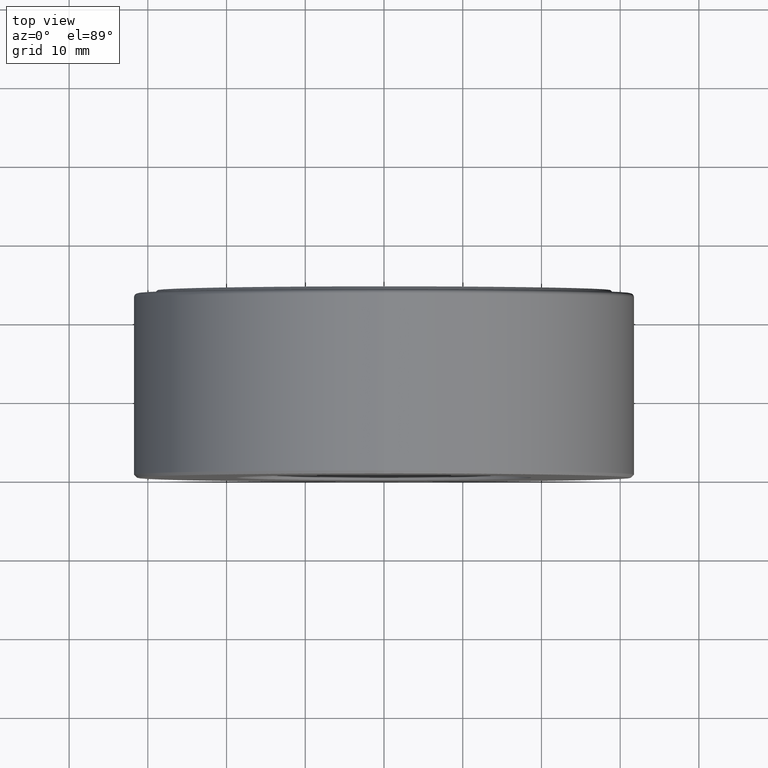
[diagram: clean part render]
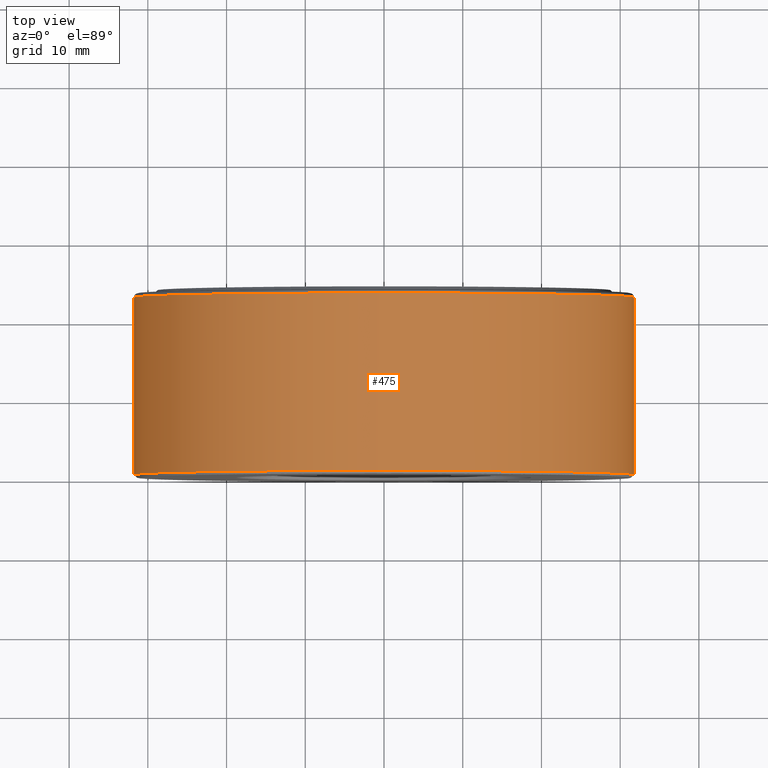
[diagram: same view with one face highlighted and labeled with its STEP entity id]
A machine part, top view. The second image highlights one B-rep face of the part: STEP entity #475.
In plain terms, the highlighted cylindrical surface (bore or boss wall) has radius 31.75 mm, axis along (-0, 1, -0).
Its self-contained STEP definition (entity closure, byte-faithful):
#9 = DIRECTION ( 'NONE',  ( 0.0000000000000000000, 0.0000000000000000000, 1.000000000000000000 ) ) ;
#13 = CIRCLE ( 'NONE', #259, 1.250000000000000000 ) ;
#24 = CARTESIAN_POINT ( 'NONE',  ( 0.0000000000000000000, 0.9024999999999998600, 1.250000000000000000 ) ) ;
#55 = CYLINDRICAL_SURFACE ( 'NONE', #236, 1.250000000000000000 ) ;
#58 = DIRECTION ( 'NONE',  ( -0.0000000000000000000, 1.000000000000000000, -0.0000000000000000000 ) ) ;
#101 = DIRECTION ( 'NONE',  ( 0.0000000000000000000, 0.0000000000000000000, 1.000000000000000000 ) ) ;
#144 = DIRECTION ( 'NONE',  ( 0.0000000000000000000, 0.0000000000000000000, 1.000000000000000000 ) ) ;
#157 = AXIS2_PLACEMENT_3D ( 'NONE', #282, #194, #9 ) ;
#194 = DIRECTION ( 'NONE',  ( -0.0000000000000000000, 1.000000000000000000, -0.0000000000000000000 ) ) ;
#199 = CARTESIAN_POINT ( 'NONE',  ( 0.0000000000000000000, 0.0000000000000000000, 0.0000000000000000000 ) ) ;
#236 = AXIS2_PLACEMENT_3D ( 'NONE', #199, #569, #144 ) ;
#259 = AXIS2_PLACEMENT_3D ( 'NONE', #379, #58, #101 ) ;
#271 = FACE_OUTER_BOUND ( 'NONE', #324, .T. ) ;
#282 = CARTESIAN_POINT ( 'NONE',  ( 0.0000000000000000000, 0.9024999999999998600, 0.0000000000000000000 ) ) ;
#318 = ORIENTED_EDGE ( 'NONE', *, *, #404, .T. ) ;
#324 = EDGE_LOOP ( 'NONE', ( #318 ) ) ;
#363 = EDGE_LOOP ( 'NONE', ( #542 ) ) ;
#379 = CARTESIAN_POINT ( 'NONE',  ( 0.0000000000000000000, 0.01499999999999997700, 0.0000000000000000000 ) ) ;
#404 = EDGE_CURVE ( 'NONE', #514, #514, #13, .T. ) ;
#475 = ADVANCED_FACE ( 'NONE', ( #479, #271 ), #55, .T. ) ;
#479 = FACE_OUTER_BOUND ( 'NONE', #363, .T. ) ;
#484 = CARTESIAN_POINT ( 'NONE',  ( 0.0000000000000000000, 0.01499999999999997700, 1.250000000000000000 ) ) ;
#494 = VERTEX_POINT ( 'NONE', #24 ) ;
#514 = VERTEX_POINT ( 'NONE', #484 ) ;
#528 = EDGE_CURVE ( 'NONE', #494, #494, #566, .T. ) ;
#542 = ORIENTED_EDGE ( 'NONE', *, *, #528, .F. ) ;
#566 = CIRCLE ( 'NONE', #157, 1.250000000000000000 ) ;
#569 = DIRECTION ( 'NONE',  ( -0.0000000000000000000, 1.000000000000000000, -0.0000000000000000000 ) ) ;